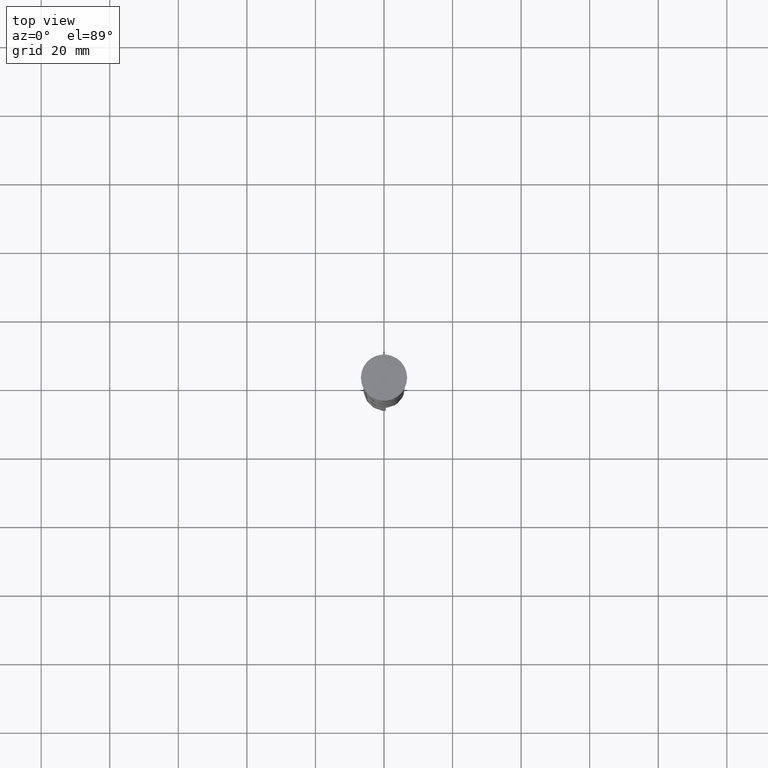
[diagram: clean part render]
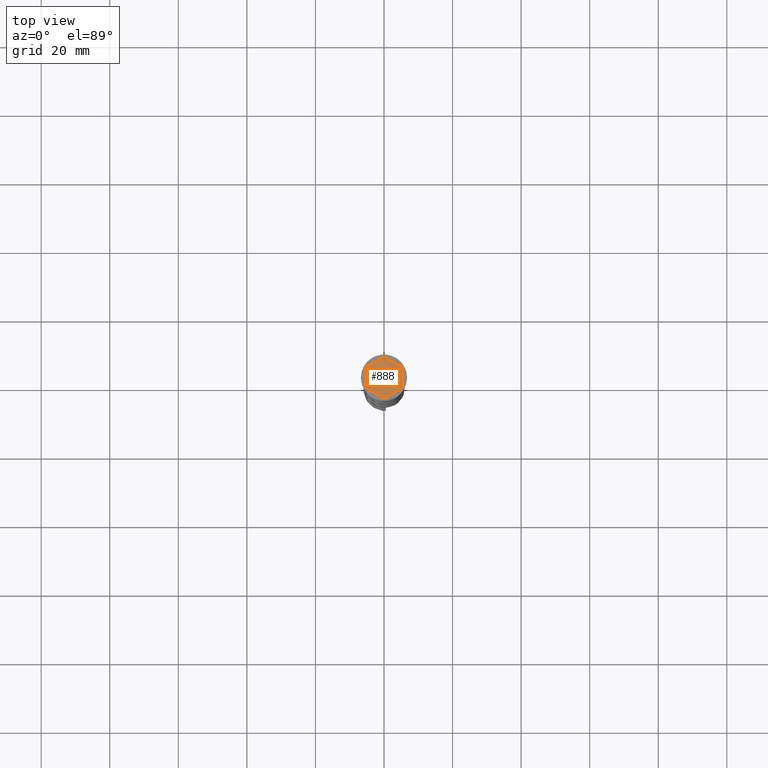
[diagram: same view with one face highlighted and labeled with its STEP entity id]
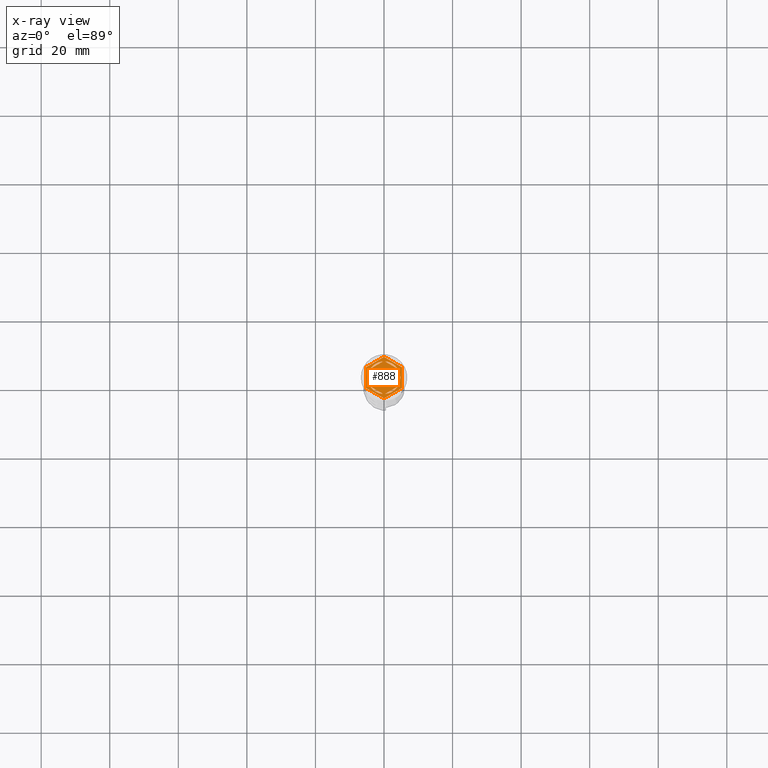
[diagram: x-ray of the same camera — body ghosted, the highlighted face saturated]
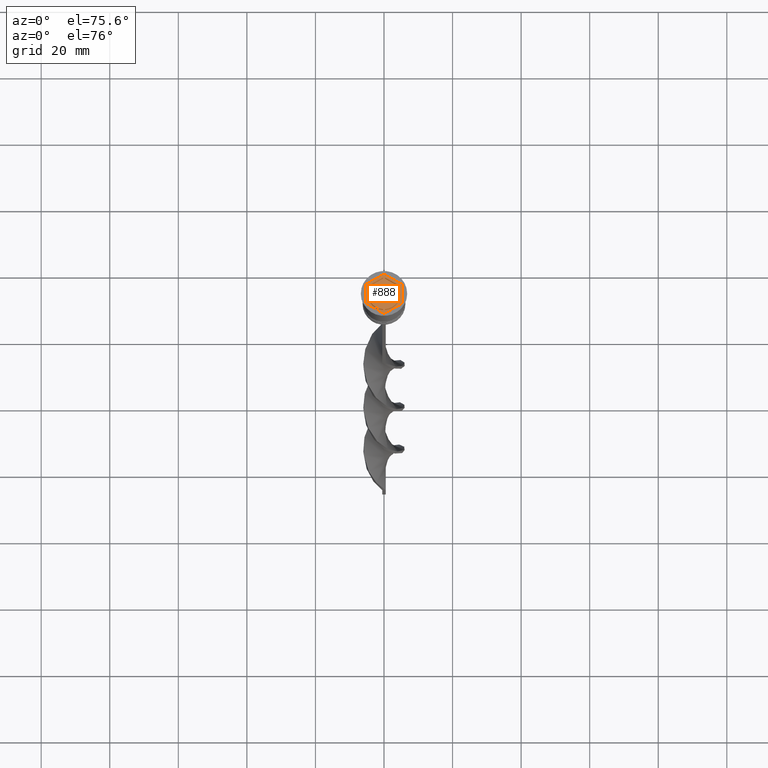
[diagram: same view with one face highlighted and labeled with its STEP entity id]
A machine part, top view. The second image highlights one B-rep face of the part: STEP entity #888.
The next image is the same camera in x-ray: the body ghosted, the highlighted face saturated — about 0% of this face is hidden behind the body in this view.
A second angle (auxiliary view) of the same face is appended — the face is thin or edge-on in the first view.
In plain terms, the highlighted planar face has unit normal (0, 0, 1).
Its self-contained STEP definition (entity closure, byte-faithful):
#64 = DIRECTION ( 'NONE',  ( -0.8660254037844385966, 0.5000000000000001110, 0.000000000000000000 ) ) ;
#69 = CARTESIAN_POINT ( 'NONE',  ( 5.250000000000000888, 3.031088913245536087, -1.000000000000000000 ) ) ;
#114 = ORIENTED_EDGE ( 'NONE', *, *, #3529, .F. ) ;
#126 = CARTESIAN_POINT ( 'NONE',  ( -0.2878826929126160894, -4.741268137863686505, -1.000000000000000888 ) ) ;
#131 = CARTESIAN_POINT ( 'NONE',  ( 0.2878826929126145906, 4.741268137863685617, -1.000000000000000888 ) ) ;
#172 = CARTESIAN_POINT ( 'NONE',  ( 0.000000000000000000, 0.000000000000000000, -1.000000000000000000 ) ) ;
#227 = DIRECTION ( 'NONE',  ( 0.000000000000000000, 0.000000000000000000, 1.000000000000000000 ) ) ;
#233 = DIRECTION ( 'NONE',  ( -0.8660254037844385966, 0.4999999999999998890, 0.000000000000000000 ) ) ;
#265 = VERTEX_POINT ( 'NONE', #706 ) ;
#290 = VECTOR ( 'NONE', #668, 1000.000000000000000 ) ;
#300 = EDGE_CURVE ( 'NONE', #2077, #2962, #3679, .T. ) ;
#334 = EDGE_LOOP ( 'NONE', ( #1944, #1190 ) ) ;
#341 = ORIENTED_EDGE ( 'NONE', *, *, #3781, .F. ) ;
#368 = EDGE_CURVE ( 'NONE', #1742, #3120, #3427, .T. ) ;
#379 = CARTESIAN_POINT ( 'NONE',  ( 0.000000000000000000, 0.000000000000000000, -1.000000000000000000 ) ) ;
#395 = EDGE_LOOP ( 'NONE', ( #2701, #529 ) ) ;
#399 = VERTEX_POINT ( 'NONE', #2246 ) ;
#411 = CARTESIAN_POINT ( 'NONE',  ( 4.336808689942017736E-16, 4.907477288111819824, -1.000000000000000888 ) ) ;
#412 = CIRCLE ( 'NONE', #2272, 4.750000000000000888 ) ;
#453 = ORIENTED_EDGE ( 'NONE', *, *, #509, .T. ) ;
#465 = LINE ( 'NONE', #1972, #3562 ) ;
#467 = CARTESIAN_POINT ( 'NONE',  ( -0.2878826929126160894, 4.741268137863686505, -1.000000000000000888 ) ) ;
#473 = AXIS2_PLACEMENT_3D ( 'NONE', #2263, #3431, #786 ) ;
#474 = CARTESIAN_POINT ( 'NONE',  ( 0.000000000000000000, 0.000000000000000000, -1.000000000000000000 ) ) ;
#492 = VERTEX_POINT ( 'NONE', #2677 ) ;
#509 = EDGE_CURVE ( 'NONE', #3120, #1133, #2062, .T. ) ;
#517 = ORIENTED_EDGE ( 'NONE', *, *, #2158, .F. ) ;
#528 = EDGE_CURVE ( 'NONE', #1133, #2675, #1794, .T. ) ;
#529 = ORIENTED_EDGE ( 'NONE', *, *, #2600, .F. ) ;
#541 = CIRCLE ( 'NONE', #1159, 4.750000000000000888 ) ;
#557 = CARTESIAN_POINT ( 'NONE',  ( 0.000000000000000000, 6.062177826491072175, -1.000000000000000000 ) ) ;
#560 = CARTESIAN_POINT ( 'NONE',  ( 8.729740977282959667E-16, -6.062177826491071286, -1.000000000000000000 ) ) ;
#642 = CARTESIAN_POINT ( 'NONE',  ( 4.249999999999999112, -2.453738644055910356, -1.000000000000000888 ) ) ;
#651 = EDGE_CURVE ( 'NONE', #1622, #3019, #3798, .T. ) ;
#668 = DIRECTION ( 'NONE',  ( -1.767428939690775055E-16, -1.000000000000000000, 0.000000000000000000 ) ) ;
#706 = CARTESIAN_POINT ( 'NONE',  ( 3.962117307087384521, 2.619947794304043232, -1.000000000000000888 ) ) ;
#740 = DIRECTION ( 'NONE',  ( 1.000000000000000000, 0.000000000000000000, 0.000000000000000000 ) ) ;
#762 = FACE_BOUND ( 'NONE', #395, .T. ) ;
#775 = VECTOR ( 'NONE', #233, 1000.000000000000227 ) ;
#785 = VECTOR ( 'NONE', #64, 1000.000000000000000 ) ;
#786 = DIRECTION ( 'NONE',  ( 1.000000000000000000, 0.000000000000000000, 0.000000000000000000 ) ) ;
#837 = AXIS2_PLACEMENT_3D ( 'NONE', #379, #1847, #1888 ) ;
#843 = ORIENTED_EDGE ( 'NONE', *, *, #2761, .T. ) ;
#861 = CARTESIAN_POINT ( 'NONE',  ( 4.249999999999999112, -2.121320343559645938, -1.000000000000000888 ) ) ;
#888 = ADVANCED_FACE ( 'NONE', ( #3082, #762, #1377, #3392, #3717, #3657, #3354 ), #1331, .T. ) ;
#900 = DIRECTION ( 'NONE',  ( 1.000000000000000000, 0.000000000000000000, 0.000000000000000000 ) ) ;
#925 = CARTESIAN_POINT ( 'NONE',  ( -4.250000000000000000, -2.453738644055909912, -1.000000000000000888 ) ) ;
#930 = EDGE_CURVE ( 'NONE', #2859, #954, #2521, .T. ) ;
#932 = ORIENTED_EDGE ( 'NONE', *, *, #1897, .F. ) ;
#954 = VERTEX_POINT ( 'NONE', #1397 ) ;
#1019 = VECTOR ( 'NONE', #1962, 1000.000000000000000 ) ;
#1022 = DIRECTION ( 'NONE',  ( 1.000000000000000000, 0.000000000000000000, 0.000000000000000000 ) ) ;
#1053 = ORIENTED_EDGE ( 'NONE', *, *, #3530, .T. ) ;
#1070 = LINE ( 'NONE', #2277, #2336 ) ;
#1094 = CARTESIAN_POINT ( 'NONE',  ( -5.250000000000000888, 3.031088913245535643, -1.000000000000000000 ) ) ;
#1101 = CARTESIAN_POINT ( 'NONE',  ( 0.000000000000000000, 0.000000000000000000, -1.000000000000000000 ) ) ;
#1117 = ORIENTED_EDGE ( 'NONE', *, *, #2130, .F. ) ;
#1133 = VERTEX_POINT ( 'NONE', #3159 ) ;
#1159 = AXIS2_PLACEMENT_3D ( 'NONE', #1456, #3537, #2622 ) ;
#1161 = DIRECTION ( 'NONE',  ( 0.8660254037844387076, -0.4999999999999998335, 0.000000000000000000 ) ) ;
#1181 = LINE ( 'NONE', #2084, #1664 ) ;
#1190 = ORIENTED_EDGE ( 'NONE', *, *, #300, .F. ) ;
#1331 = PLANE ( 'NONE',  #2157 ) ;
#1342 = EDGE_CURVE ( 'NONE', #2367, #3746, #541, .T. ) ;
#1352 = CARTESIAN_POINT ( 'NONE',  ( 3.962117307087384521, -2.619947794304042787, -1.000000000000000888 ) ) ;
#1357 = CARTESIAN_POINT ( 'NONE',  ( 5.250000000000000888, -3.031088913245536087, -1.000000000000000000 ) ) ;
#1373 = ORIENTED_EDGE ( 'NONE', *, *, #930, .F. ) ;
#1377 = FACE_BOUND ( 'NONE', #334, .T. ) ;
#1397 = CARTESIAN_POINT ( 'NONE',  ( -3.962117307087385409, 2.619947794304041899, -1.000000000000000888 ) ) ;
#1456 = CARTESIAN_POINT ( 'NONE',  ( 0.000000000000000000, 0.000000000000000000, -1.000000000000000000 ) ) ;
#1466 = ORIENTED_EDGE ( 'NONE', *, *, #528, .T. ) ;
#1569 = ORIENTED_EDGE ( 'NONE', *, *, #2221, .T. ) ;
#1586 = ORIENTED_EDGE ( 'NONE', *, *, #368, .T. ) ;
#1622 = VERTEX_POINT ( 'NONE', #3468 ) ;
#1632 = EDGE_CURVE ( 'NONE', #2636, #265, #1181, .T. ) ;
#1664 = VECTOR ( 'NONE', #1161, 1000.000000000000000 ) ;
#1684 = DIRECTION ( 'NONE',  ( 0.8660254037844385966, 0.4999999999999999445, 0.000000000000000000 ) ) ;
#1727 = VERTEX_POINT ( 'NONE', #560 ) ;
#1732 = VERTEX_POINT ( 'NONE', #2065 ) ;
#1742 = VERTEX_POINT ( 'NONE', #2679 ) ;
#1794 = LINE ( 'NONE', #557, #1967 ) ;
#1844 = CIRCLE ( 'NONE', #837, 4.750000000000000888 ) ;
#1847 = DIRECTION ( 'NONE',  ( 0.000000000000000000, 0.000000000000000000, 1.000000000000000000 ) ) ;
#1860 = CIRCLE ( 'NONE', #3795, 4.750000000000000888 ) ;
#1888 = DIRECTION ( 'NONE',  ( 1.000000000000000000, 0.000000000000000000, 0.000000000000000000 ) ) ;
#1897 = EDGE_CURVE ( 'NONE', #399, #3389, #1844, .T. ) ;
#1944 = ORIENTED_EDGE ( 'NONE', *, *, #3340, .F. ) ;
#1957 = DIRECTION ( 'NONE',  ( 0.000000000000000000, 0.000000000000000000, 1.000000000000000000 ) ) ;
#1962 = DIRECTION ( 'NONE',  ( 0.000000000000000000, 1.000000000000000000, 0.000000000000000000 ) ) ;
#1964 = DIRECTION ( 'NONE',  ( 1.000000000000000000, 0.000000000000000000, -0.000000000000000000 ) ) ;
#1967 = VECTOR ( 'NONE', #3484, 1000.000000000000227 ) ;
#1972 = CARTESIAN_POINT ( 'NONE',  ( -5.250000000000000888, -3.031088913245536087, -1.000000000000000000 ) ) ;
#1980 = DIRECTION ( 'NONE',  ( 1.000000000000000000, 0.000000000000000000, 0.000000000000000000 ) ) ;
#2061 = ORIENTED_EDGE ( 'NONE', *, *, #1632, .F. ) ;
#2062 = LINE ( 'NONE', #2350, #775 ) ;
#2065 = CARTESIAN_POINT ( 'NONE',  ( -5.250000000000000888, -3.031088913245536087, -1.000000000000000000 ) ) ;
#2073 = LINE ( 'NONE', #2643, #2162 ) ;
#2077 = VERTEX_POINT ( 'NONE', #1352 ) ;
#2084 = CARTESIAN_POINT ( 'NONE',  ( 4.250000000000000000, 2.453738644055910800, -1.000000000000000888 ) ) ;
#2093 = DIRECTION ( 'NONE',  ( 0.000000000000000000, 1.000000000000000000, 0.000000000000000000 ) ) ;
#2130 = EDGE_CURVE ( 'NONE', #3019, #492, #1860, .T. ) ;
#2147 = LINE ( 'NONE', #642, #290 ) ;
#2157 = AXIS2_PLACEMENT_3D ( 'NONE', #1101, #2560, #1964 ) ;
#2158 = EDGE_CURVE ( 'NONE', #265, #2636, #3318, .T. ) ;
#2162 = VECTOR ( 'NONE', #2093, 1000.000000000000000 ) ;
#2209 = AXIS2_PLACEMENT_3D ( 'NONE', #3239, #2386, #900 ) ;
#2221 = EDGE_CURVE ( 'NONE', #2675, #1732, #2571, .T. ) ;
#2246 = CARTESIAN_POINT ( 'NONE',  ( -3.962117307087385409, -2.619947794304041899, -1.000000000000000888 ) ) ;
#2253 = LINE ( 'NONE', #411, #2714 ) ;
#2263 = CARTESIAN_POINT ( 'NONE',  ( 0.000000000000000000, 0.000000000000000000, -1.000000000000000000 ) ) ;
#2270 = DIRECTION ( 'NONE',  ( 0.000000000000000000, 0.000000000000000000, 1.000000000000000000 ) ) ;
#2272 = AXIS2_PLACEMENT_3D ( 'NONE', #3085, #2270, #1022 ) ;
#2277 = CARTESIAN_POINT ( 'NONE',  ( 8.729740977282959667E-16, -6.062177826491071286, -1.000000000000000000 ) ) ;
#2295 = CARTESIAN_POINT ( 'NONE',  ( 0.2878826929126150347, -4.741268137863686505, -1.000000000000000888 ) ) ;
#2322 = EDGE_LOOP ( 'NONE', ( #517, #2061 ) ) ;
#2336 = VECTOR ( 'NONE', #1684, 1000.000000000000114 ) ;
#2350 = CARTESIAN_POINT ( 'NONE',  ( 5.250000000000000888, 3.031088913245536087, -1.000000000000000000 ) ) ;
#2367 = VERTEX_POINT ( 'NONE', #861 ) ;
#2386 = DIRECTION ( 'NONE',  ( 0.000000000000000000, 0.000000000000000000, 1.000000000000000000 ) ) ;
#2412 = CARTESIAN_POINT ( 'NONE',  ( 4.249999999999999112, 2.121320343559644162, -1.000000000000000888 ) ) ;
#2466 = LINE ( 'NONE', #925, #785 ) ;
#2516 = ORIENTED_EDGE ( 'NONE', *, *, #651, .F. ) ;
#2521 = CIRCLE ( 'NONE', #473, 4.750000000000000888 ) ;
#2560 = DIRECTION ( 'NONE',  ( 0.000000000000000000, 0.000000000000000000, 1.000000000000000000 ) ) ;
#2571 = LINE ( 'NONE', #1094, #3487 ) ;
#2577 = EDGE_LOOP ( 'NONE', ( #1373, #114 ) ) ;
#2578 = DIRECTION ( 'NONE',  ( -0.8660254037844387076, -0.4999999999999999445, 0.000000000000000000 ) ) ;
#2600 = EDGE_CURVE ( 'NONE', #3746, #2367, #2147, .T. ) ;
#2622 = DIRECTION ( 'NONE',  ( 1.000000000000000000, 0.000000000000000000, 0.000000000000000000 ) ) ;
#2636 = VERTEX_POINT ( 'NONE', #131 ) ;
#2643 = CARTESIAN_POINT ( 'NONE',  ( -4.250000000000000000, 2.453738644055909468, -1.000000000000000888 ) ) ;
#2649 = EDGE_LOOP ( 'NONE', ( #2516, #3775, #1117 ) ) ;
#2656 = AXIS2_PLACEMENT_3D ( 'NONE', #172, #227, #1980 ) ;
#2675 = VERTEX_POINT ( 'NONE', #3015 ) ;
#2677 = CARTESIAN_POINT ( 'NONE',  ( -4.250000000000000000, -2.121320343559643717, -1.000000000000000888 ) ) ;
#2679 = CARTESIAN_POINT ( 'NONE',  ( 5.250000000000000888, -3.031088913245536087, -1.000000000000000000 ) ) ;
#2701 = ORIENTED_EDGE ( 'NONE', *, *, #1342, .F. ) ;
#2714 = VECTOR ( 'NONE', #3398, 1000.000000000000000 ) ;
#2761 = EDGE_CURVE ( 'NONE', #1727, #1742, #1070, .T. ) ;
#2804 = DIRECTION ( 'NONE',  ( 0.000000000000000000, -1.000000000000000000, 0.000000000000000000 ) ) ;
#2859 = VERTEX_POINT ( 'NONE', #467 ) ;
#2954 = EDGE_CURVE ( 'NONE', #492, #1622, #2073, .T. ) ;
#2962 = VERTEX_POINT ( 'NONE', #2295 ) ;
#3015 = CARTESIAN_POINT ( 'NONE',  ( -5.250000000000000888, 3.031088913245535643, -1.000000000000000000 ) ) ;
#3019 = VERTEX_POINT ( 'NONE', #3521 ) ;
#3082 = FACE_BOUND ( 'NONE', #2322, .T. ) ;
#3085 = CARTESIAN_POINT ( 'NONE',  ( 0.000000000000000000, 0.000000000000000000, -1.000000000000000000 ) ) ;
#3120 = VERTEX_POINT ( 'NONE', #69 ) ;
#3159 = CARTESIAN_POINT ( 'NONE',  ( 0.000000000000000000, 6.062177826491072175, -1.000000000000000000 ) ) ;
#3239 = CARTESIAN_POINT ( 'NONE',  ( 0.000000000000000000, 0.000000000000000000, -1.000000000000000000 ) ) ;
#3318 = CIRCLE ( 'NONE', #2656, 4.750000000000000888 ) ;
#3340 = EDGE_CURVE ( 'NONE', #2962, #2077, #412, .T. ) ;
#3354 = FACE_OUTER_BOUND ( 'NONE', #3734, .T. ) ;
#3364 = VECTOR ( 'NONE', #2578, 1000.000000000000000 ) ;
#3389 = VERTEX_POINT ( 'NONE', #126 ) ;
#3392 = FACE_BOUND ( 'NONE', #3724, .T. ) ;
#3398 = DIRECTION ( 'NONE',  ( 0.8660254037844385966, 0.5000000000000001110, -0.000000000000000000 ) ) ;
#3408 = CARTESIAN_POINT ( 'NONE',  ( -8.673617379884035472E-16, -4.907477288111819824, -1.000000000000000888 ) ) ;
#3427 = LINE ( 'NONE', #1357, #1019 ) ;
#3431 = DIRECTION ( 'NONE',  ( 0.000000000000000000, 0.000000000000000000, 1.000000000000000000 ) ) ;
#3468 = CARTESIAN_POINT ( 'NONE',  ( -4.250000000000000000, 2.121320343559643717, -1.000000000000000888 ) ) ;
#3484 = DIRECTION ( 'NONE',  ( -0.8660254037844385966, -0.5000000000000000000, 0.000000000000000000 ) ) ;
#3487 = VECTOR ( 'NONE', #2804, 1000.000000000000000 ) ;
#3521 = CARTESIAN_POINT ( 'NONE',  ( -4.750000000000000888, 0.000000000000000000, -1.000000000000000000 ) ) ;
#3529 = EDGE_CURVE ( 'NONE', #954, #2859, #2253, .T. ) ;
#3530 = EDGE_CURVE ( 'NONE', #1732, #1727, #465, .T. ) ;
#3537 = DIRECTION ( 'NONE',  ( 0.000000000000000000, 0.000000000000000000, 1.000000000000000000 ) ) ;
#3562 = VECTOR ( 'NONE', #3707, 1000.000000000000000 ) ;
#3657 = FACE_BOUND ( 'NONE', #2577, .T. ) ;
#3679 = LINE ( 'NONE', #3408, #3364 ) ;
#3707 = DIRECTION ( 'NONE',  ( 0.8660254037844387076, -0.4999999999999998335, 0.000000000000000000 ) ) ;
#3717 = FACE_BOUND ( 'NONE', #2649, .T. ) ;
#3724 = EDGE_LOOP ( 'NONE', ( #932, #341 ) ) ;
#3734 = EDGE_LOOP ( 'NONE', ( #453, #1466, #1569, #1053, #843, #1586 ) ) ;
#3746 = VERTEX_POINT ( 'NONE', #2412 ) ;
#3775 = ORIENTED_EDGE ( 'NONE', *, *, #2954, .F. ) ;
#3781 = EDGE_CURVE ( 'NONE', #3389, #399, #2466, .T. ) ;
#3795 = AXIS2_PLACEMENT_3D ( 'NONE', #474, #1957, #740 ) ;
#3798 = CIRCLE ( 'NONE', #2209, 4.750000000000000888 ) ;